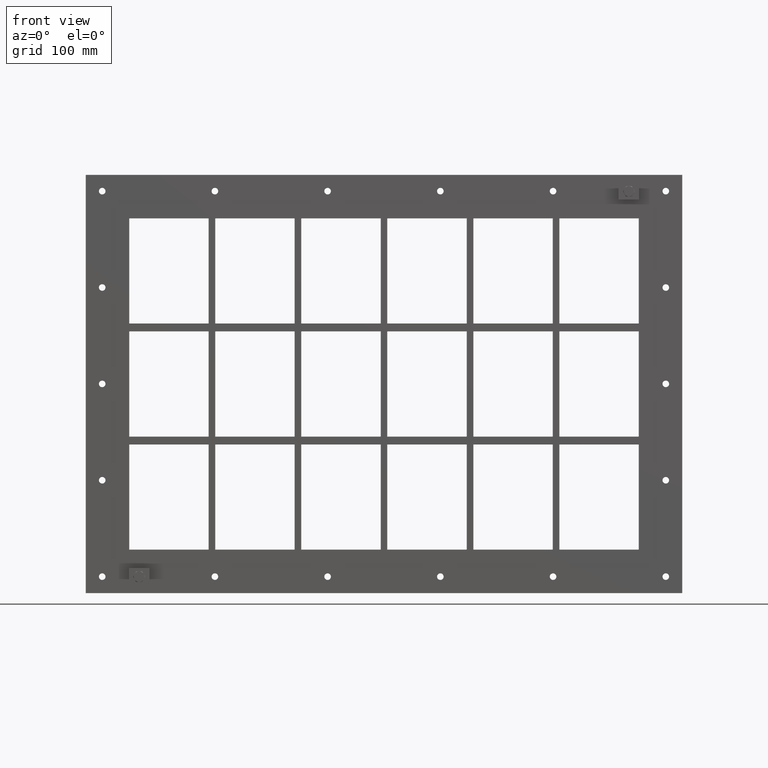
[diagram: clean part render]
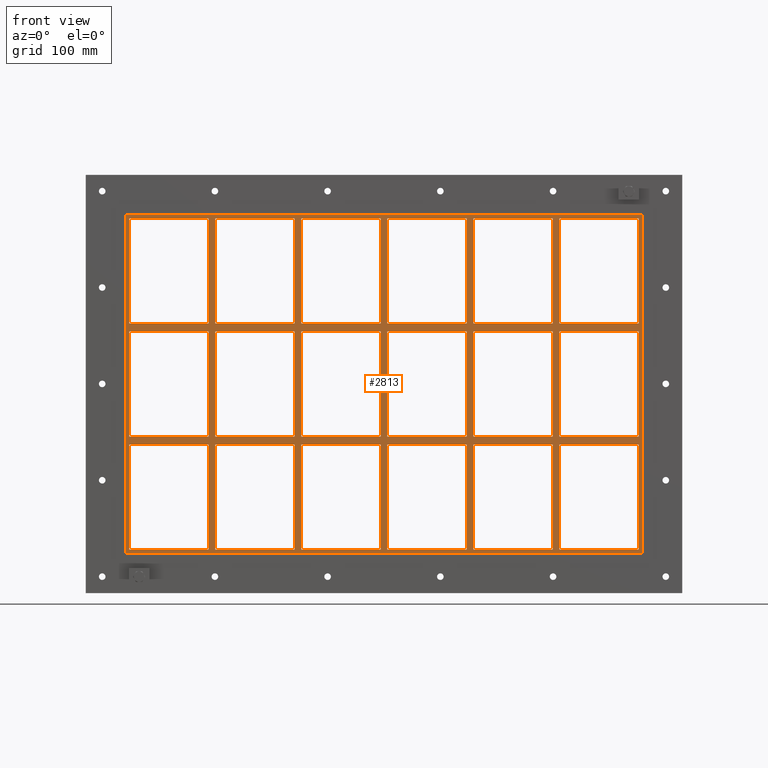
[diagram: same view with one face highlighted and labeled with its STEP entity id]
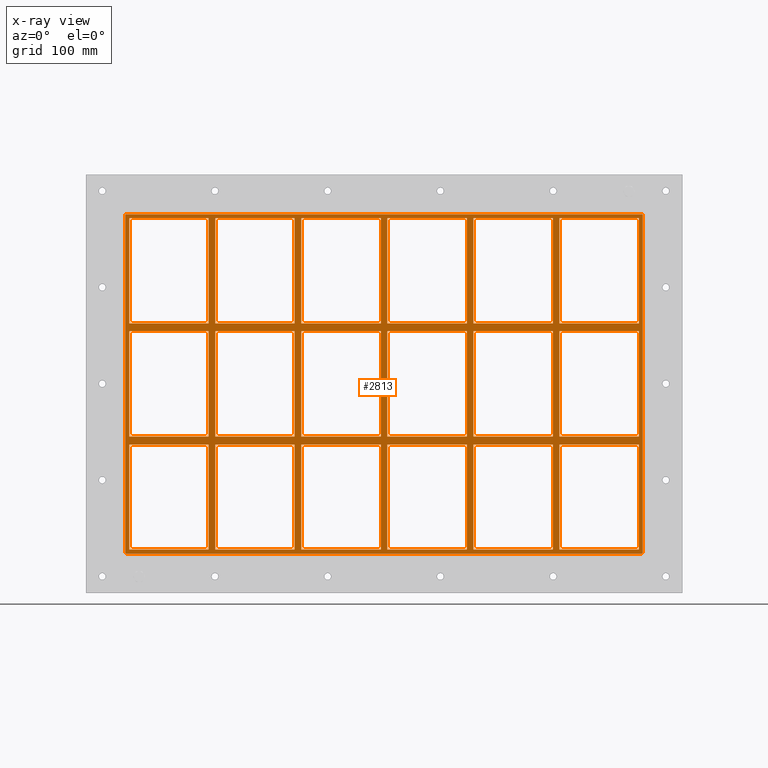
[diagram: x-ray of the same camera — body ghosted, the highlighted face saturated]
A machine part, front view. The second image highlights one B-rep face of the part: STEP entity #2813.
The next image is the same camera in x-ray: the body ghosted, the highlighted face saturated — about 0% of this face is hidden behind the body in this view.
In plain terms, the highlighted planar face has unit normal (0, 1, 0).
Its self-contained STEP definition (entity closure, byte-faithful):
#577=CARTESIAN_POINT('',(-266.00000000000028,-3.0,79.749999999989143));
#578=VERTEX_POINT('',#577);
#587=CARTESIAN_POINT('',(-386.49999999999858,-3.0,79.749999999989114));
#588=VERTEX_POINT('',#587);
#589=CARTESIAN_POINT('',(-266.00000000000023,-3.0,79.749999999989114));
#590=DIRECTION('',(-1.0,0.0,0.0));
#591=VECTOR('',#590,120.49999999999841);
#592=LINE('',#589,#591);
#593=EDGE_CURVE('',#578,#588,#592,.T.);
#617=CARTESIAN_POINT('',(-135.50000000000026,-3.0,79.749999999989114));
#618=VERTEX_POINT('',#617);
#627=CARTESIAN_POINT('',(-256.00000000000364,-3.0,79.749999999989114));
#628=VERTEX_POINT('',#627);
#629=CARTESIAN_POINT('',(-135.50000000000023,-3.0,79.749999999989114));
#630=DIRECTION('',(-1.0,0.0,0.0));
#631=VECTOR('',#630,120.50000000000341);
#632=LINE('',#629,#631);
#633=EDGE_CURVE('',#618,#628,#632,.T.);
#657=CARTESIAN_POINT('',(-5.000000000000213,-3.0,79.749999999989129));
#658=VERTEX_POINT('',#657);
#667=CARTESIAN_POINT('',(-125.50000000000367,-3.0,79.749999999989114));
#668=VERTEX_POINT('',#667);
#669=CARTESIAN_POINT('',(-5.000000000000227,-3.0,79.749999999989129));
#670=DIRECTION('',(-1.0,0.0,0.0));
#671=VECTOR('',#670,120.50000000000341);
#672=LINE('',#669,#671);
#673=EDGE_CURVE('',#658,#668,#672,.T.);
#697=CARTESIAN_POINT('',(125.4999999999998,-3.0,79.749999999989129));
#698=VERTEX_POINT('',#697);
#707=CARTESIAN_POINT('',(4.999999999996376,-3.0,79.749999999989129));
#708=VERTEX_POINT('',#707);
#709=CARTESIAN_POINT('',(125.49999999999977,-3.0,79.749999999989129));
#710=DIRECTION('',(-1.0,0.0,0.0));
#711=VECTOR('',#710,120.50000000000341);
#712=LINE('',#709,#711);
#713=EDGE_CURVE('',#698,#708,#712,.T.);
#739=CARTESIAN_POINT('',(265.99999999999642,-3.0,79.749999999989129));
#740=VERTEX_POINT('',#739);
#755=CARTESIAN_POINT('',(386.49999999999636,-3.0,79.749999999989143));
#756=VERTEX_POINT('',#755);
#763=CARTESIAN_POINT('',(386.49999999999636,-3.0,79.749999999989143));
#764=DIRECTION('',(-1.0,0.0,0.0));
#765=VECTOR('',#764,120.49999999999994);
#766=LINE('',#763,#765);
#767=EDGE_CURVE('',#756,#740,#766,.T.);
#777=CARTESIAN_POINT('',(255.9999999999998,-3.0,79.749999999989129));
#778=VERTEX_POINT('',#777);
#787=CARTESIAN_POINT('',(135.49999999999642,-3.0,79.749999999989129));
#788=VERTEX_POINT('',#787);
#789=CARTESIAN_POINT('',(255.9999999999998,-3.0,79.749999999989143));
#790=DIRECTION('',(-1.0,0.0,0.0));
#791=VECTOR('',#790,120.50000000000338);
#792=LINE('',#789,#791);
#793=EDGE_CURVE('',#778,#788,#792,.T.);
#819=CARTESIAN_POINT('',(-266.00000000000028,-3.0,91.749999999999829));
#820=VERTEX_POINT('',#819);
#835=CARTESIAN_POINT('',(-386.49999999999858,-3.0,91.749999999999801));
#836=VERTEX_POINT('',#835);
#843=CARTESIAN_POINT('',(-386.49999999999858,-3.0,91.749999999999801));
#844=DIRECTION('',(1.0,0.0,0.0));
#845=VECTOR('',#844,120.49999999999829);
#846=LINE('',#843,#845);
#847=EDGE_CURVE('',#836,#820,#846,.T.);
#857=CARTESIAN_POINT('',(265.99999999999648,-3.0,91.749999999999801));
#858=VERTEX_POINT('',#857);
#867=CARTESIAN_POINT('',(386.49999999999955,-3.0,91.749999999999801));
#868=VERTEX_POINT('',#867);
#869=CARTESIAN_POINT('',(265.99999999999642,-3.0,91.749999999999801));
#870=DIRECTION('',(1.0,0.0,0.0));
#871=VECTOR('',#870,120.50000000000318);
#872=LINE('',#869,#871);
#873=EDGE_CURVE('',#858,#868,#872,.T.);
#899=CARTESIAN_POINT('',(-135.50000000000026,-3.0,91.749999999999801));
#900=VERTEX_POINT('',#899);
#915=CARTESIAN_POINT('',(-256.00000000000364,-3.0,91.749999999999801));
#916=VERTEX_POINT('',#915);
#923=CARTESIAN_POINT('',(-256.00000000000364,-3.0,91.749999999999801));
#924=DIRECTION('',(1.0,0.0,0.0));
#925=VECTOR('',#924,120.50000000000335);
#926=LINE('',#923,#925);
#927=EDGE_CURVE('',#916,#900,#926,.T.);
#939=CARTESIAN_POINT('',(-5.000000000000213,-3.0,91.749999999999801));
#940=VERTEX_POINT('',#939);
#955=CARTESIAN_POINT('',(-125.50000000000364,-3.0,91.749999999999801));
#956=VERTEX_POINT('',#955);
#963=CARTESIAN_POINT('',(-125.50000000000364,-3.0,91.749999999999801));
#964=DIRECTION('',(1.0,0.0,0.0));
#965=VECTOR('',#964,120.50000000000341);
#966=LINE('',#963,#965);
#967=EDGE_CURVE('',#956,#940,#966,.T.);
#979=CARTESIAN_POINT('',(125.49999999999983,-3.0,91.749999999999801));
#980=VERTEX_POINT('',#979);
#995=CARTESIAN_POINT('',(4.999999999996376,-3.0,91.749999999999801));
#996=VERTEX_POINT('',#995);
#1003=CARTESIAN_POINT('',(4.999999999996362,-3.0,91.749999999999801));
#1004=DIRECTION('',(1.0,0.0,0.0));
#1005=VECTOR('',#1004,120.50000000000347);
#1006=LINE('',#1003,#1005);
#1007=EDGE_CURVE('',#996,#980,#1006,.T.);
#1019=CARTESIAN_POINT('',(255.99999999999989,-3.0,91.749999999999801));
#1020=VERTEX_POINT('',#1019);
#1035=CARTESIAN_POINT('',(135.49999999999642,-3.0,91.749999999999801));
#1036=VERTEX_POINT('',#1035);
#1043=CARTESIAN_POINT('',(135.49999999999642,-3.0,91.749999999999801));
#1044=DIRECTION('',(1.0,0.0,0.0));
#1045=VECTOR('',#1044,120.50000000000341);
#1046=LINE('',#1043,#1045);
#1047=EDGE_CURVE('',#1036,#1020,#1046,.T.);
#1066=CARTESIAN_POINT('',(-386.50000000000006,-3.0,251.25));
#1067=VERTEX_POINT('',#1066);
#1074=CARTESIAN_POINT('',(-386.50000000000006,-3.0,91.749999999999801));
#1075=DIRECTION('',(0.0,0.0,1.0));
#1076=VECTOR('',#1075,159.5000000000002);
#1077=LINE('',#1074,#1076);
#1078=EDGE_CURVE('',#836,#1067,#1077,.T.);
#1097=CARTESIAN_POINT('',(386.49999999999955,-3.0,-79.750000000000227));
#1098=VERTEX_POINT('',#1097);
#1105=CARTESIAN_POINT('',(386.50000000000006,-3.0,79.749999999989143));
#1106=DIRECTION('',(0.0,0.0,-1.0));
#1107=VECTOR('',#1106,159.49999999998937);
#1108=LINE('',#1105,#1107);
#1109=EDGE_CURVE('',#756,#1098,#1108,.T.);
#1120=CARTESIAN_POINT('',(386.50000000000006,-3.0,251.25));
#1121=VERTEX_POINT('',#1120);
#1122=CARTESIAN_POINT('',(386.50000000000006,-3.0,251.25));
#1123=DIRECTION('',(0.0,0.0,-1.0));
#1124=VECTOR('',#1123,159.5000000000002);
#1125=LINE('',#1122,#1124);
#1126=EDGE_CURVE('',#1121,#868,#1125,.T.);
#1151=CARTESIAN_POINT('',(255.9999999999998,-3.0,251.25));
#1152=VERTEX_POINT('',#1151);
#1153=CARTESIAN_POINT('',(255.9999999999998,-3.0,91.749999999999829));
#1154=DIRECTION('',(0.0,0.0,1.0));
#1155=VECTOR('',#1154,159.50000000000017);
#1156=LINE('',#1153,#1155);
#1157=EDGE_CURVE('',#1020,#1152,#1156,.T.);
#1190=CARTESIAN_POINT('',(265.99999999999642,-3.0,251.25));
#1191=VERTEX_POINT('',#1190);
#1198=CARTESIAN_POINT('',(265.99999999999642,-3.0,251.25));
#1199=DIRECTION('',(0.0,0.0,-1.0));
#1200=VECTOR('',#1199,159.5000000000002);
#1201=LINE('',#1198,#1200);
#1202=EDGE_CURVE('',#1191,#858,#1201,.T.);
#1213=CARTESIAN_POINT('',(125.4999999999998,-3.0,251.25));
#1214=VERTEX_POINT('',#1213);
#1215=CARTESIAN_POINT('',(125.4999999999998,-3.0,91.749999999999829));
#1216=DIRECTION('',(0.0,0.0,1.0));
#1217=VECTOR('',#1216,159.50000000000017);
#1218=LINE('',#1215,#1217);
#1219=EDGE_CURVE('',#980,#1214,#1218,.T.);
#1252=CARTESIAN_POINT('',(135.49999999999642,-3.0,251.25));
#1253=VERTEX_POINT('',#1252);
#1260=CARTESIAN_POINT('',(135.49999999999642,-3.0,251.25));
#1261=DIRECTION('',(0.0,0.0,-1.0));
#1262=VECTOR('',#1261,159.5000000000002);
#1263=LINE('',#1260,#1262);
#1264=EDGE_CURVE('',#1253,#1036,#1263,.T.);
#1275=CARTESIAN_POINT('',(-5.000000000000249,-3.0,251.25));
#1276=VERTEX_POINT('',#1275);
#1277=CARTESIAN_POINT('',(-5.000000000000237,-3.0,91.749999999999829));
#1278=DIRECTION('',(0.0,0.0,1.0));
#1279=VECTOR('',#1278,159.50000000000017);
#1280=LINE('',#1277,#1279);
#1281=EDGE_CURVE('',#940,#1276,#1280,.T.);
#1314=CARTESIAN_POINT('',(4.999999999996376,-3.0,251.25));
#1315=VERTEX_POINT('',#1314);
#1322=CARTESIAN_POINT('',(4.999999999996376,-3.0,251.25));
#1323=DIRECTION('',(0.0,0.0,-1.0));
#1324=VECTOR('',#1323,159.5000000000002);
#1325=LINE('',#1322,#1324);
#1326=EDGE_CURVE('',#1315,#996,#1325,.T.);
#1337=CARTESIAN_POINT('',(-135.50000000000026,-3.0,251.25));
#1338=VERTEX_POINT('',#1337);
#1339=CARTESIAN_POINT('',(-135.50000000000026,-3.0,91.749999999999829));
#1340=DIRECTION('',(0.0,0.0,1.0));
#1341=VECTOR('',#1340,159.50000000000017);
#1342=LINE('',#1339,#1341);
#1343=EDGE_CURVE('',#900,#1338,#1342,.T.);
#1376=CARTESIAN_POINT('',(-125.50000000000364,-3.0,251.25));
#1377=VERTEX_POINT('',#1376);
#1384=CARTESIAN_POINT('',(-125.50000000000364,-3.0,251.25));
#1385=DIRECTION('',(0.0,0.0,-1.0));
#1386=VECTOR('',#1385,159.5000000000002);
#1387=LINE('',#1384,#1386);
#1388=EDGE_CURVE('',#1377,#956,#1387,.T.);
#1399=CARTESIAN_POINT('',(-266.00000000000028,-3.0,251.25));
#1400=VERTEX_POINT('',#1399);
#1401=CARTESIAN_POINT('',(-266.00000000000023,-3.0,91.749999999999829));
#1402=DIRECTION('',(0.0,0.0,1.0));
#1403=VECTOR('',#1402,159.50000000000017);
#1404=LINE('',#1401,#1403);
#1405=EDGE_CURVE('',#820,#1400,#1404,.T.);
#1438=CARTESIAN_POINT('',(-266.00000000000023,-3.0,-79.750000000000227));
#1439=VERTEX_POINT('',#1438);
#1446=CARTESIAN_POINT('',(-266.00000000000023,-3.0,-79.750000000000227));
#1447=DIRECTION('',(0.0,0.0,1.0));
#1448=VECTOR('',#1447,159.49999999998937);
#1449=LINE('',#1446,#1448);
#1450=EDGE_CURVE('',#1439,#578,#1449,.T.);
#1469=CARTESIAN_POINT('',(-256.00000000000364,-3.0,251.25));
#1470=VERTEX_POINT('',#1469);
#1477=CARTESIAN_POINT('',(-256.00000000000364,-3.0,251.25));
#1478=DIRECTION('',(0.0,0.0,-1.0));
#1479=VECTOR('',#1478,159.5000000000002);
#1480=LINE('',#1477,#1479);
#1481=EDGE_CURVE('',#1470,#916,#1480,.T.);
#1957=CARTESIAN_POINT('',(255.99999999999983,-3.0,-79.750000000000227));
#1958=VERTEX_POINT('',#1957);
#1965=CARTESIAN_POINT('',(255.99999999999983,-3.0,-79.750000000000227));
#1966=DIRECTION('',(0.0,0.0,1.0));
#1967=VECTOR('',#1966,159.49999999998937);
#1968=LINE('',#1965,#1967);
#1969=EDGE_CURVE('',#1958,#778,#1968,.T.);
#1979=CARTESIAN_POINT('',(255.99999999999983,-3.0,-91.750000000010886));
#1980=VERTEX_POINT('',#1979);
#1988=CARTESIAN_POINT('',(255.99999999999983,-3.0,-251.25));
#1989=VERTEX_POINT('',#1988);
#1996=CARTESIAN_POINT('',(255.99999999999983,-3.0,-251.25));
#1997=DIRECTION('',(0.0,0.0,1.0));
#1998=VECTOR('',#1997,159.49999999998911);
#1999=LINE('',#1996,#1998);
#2000=EDGE_CURVE('',#1989,#1980,#1999,.T.);
#2011=CARTESIAN_POINT('',(265.99999999999642,-3.0,-79.750000000000227));
#2012=VERTEX_POINT('',#2011);
#2013=CARTESIAN_POINT('',(265.99999999999642,-3.0,79.749999999989143));
#2014=DIRECTION('',(0.0,0.0,-1.0));
#2015=VECTOR('',#2014,159.49999999998937);
#2016=LINE('',#2013,#2015);
#2017=EDGE_CURVE('',#740,#2012,#2016,.T.);
#2034=CARTESIAN_POINT('',(265.99999999999642,-3.0,-91.750000000010914));
#2035=VERTEX_POINT('',#2034);
#2042=CARTESIAN_POINT('',(265.99999999999642,-3.0,-251.24999999998175));
#2043=VERTEX_POINT('',#2042);
#2044=CARTESIAN_POINT('',(265.99999999999642,-3.0,-91.750000000010914));
#2045=DIRECTION('',(0.0,0.0,-1.0));
#2046=VECTOR('',#2045,159.49999999997084);
#2047=LINE('',#2044,#2046);
#2048=EDGE_CURVE('',#2035,#2043,#2047,.T.);
#2067=CARTESIAN_POINT('',(125.49999999999982,-3.0,-79.750000000000227));
#2068=VERTEX_POINT('',#2067);
#2075=CARTESIAN_POINT('',(125.49999999999982,-3.0,-79.750000000000227));
#2076=DIRECTION('',(0.0,0.0,1.0));
#2077=VECTOR('',#2076,159.49999999998937);
#2078=LINE('',#2075,#2077);
#2079=EDGE_CURVE('',#2068,#698,#2078,.T.);
#2089=CARTESIAN_POINT('',(125.49999999999982,-3.0,-91.7500000000109));
#2090=VERTEX_POINT('',#2089);
#2098=CARTESIAN_POINT('',(125.49999999999983,-3.0,-251.25));
#2099=VERTEX_POINT('',#2098);
#2106=CARTESIAN_POINT('',(125.49999999999983,-3.0,-251.25));
#2107=DIRECTION('',(0.0,0.0,1.0));
#2108=VECTOR('',#2107,159.49999999998911);
#2109=LINE('',#2106,#2108);
#2110=EDGE_CURVE('',#2099,#2090,#2109,.T.);
#2121=CARTESIAN_POINT('',(135.49999999999642,-3.0,-79.750000000000227));
#2122=VERTEX_POINT('',#2121);
#2123=CARTESIAN_POINT('',(135.49999999999642,-3.0,79.749999999989143));
#2124=DIRECTION('',(0.0,0.0,-1.0));
#2125=VECTOR('',#2124,159.49999999998937);
#2126=LINE('',#2123,#2125);
#2127=EDGE_CURVE('',#788,#2122,#2126,.T.);
#2144=CARTESIAN_POINT('',(135.49999999999642,-3.0,-91.750000000010914));
#2145=VERTEX_POINT('',#2144);
#2152=CARTESIAN_POINT('',(135.49999999999642,-3.0,-251.24999999998175));
#2153=VERTEX_POINT('',#2152);
#2154=CARTESIAN_POINT('',(135.49999999999642,-3.0,-91.750000000010914));
#2155=DIRECTION('',(0.0,0.0,-1.0));
#2156=VECTOR('',#2155,159.49999999997084);
#2157=LINE('',#2154,#2156);
#2158=EDGE_CURVE('',#2145,#2153,#2157,.T.);
#2177=CARTESIAN_POINT('',(-5.000000000000226,-3.0,-79.750000000000227));
#2178=VERTEX_POINT('',#2177);
#2185=CARTESIAN_POINT('',(-5.000000000000226,-3.0,-79.750000000000227));
#2186=DIRECTION('',(0.0,0.0,1.0));
#2187=VECTOR('',#2186,159.49999999998937);
#2188=LINE('',#2185,#2187);
#2189=EDGE_CURVE('',#2178,#658,#2188,.T.);
#2199=CARTESIAN_POINT('',(-5.000000000000224,-3.0,-91.7500000000109));
#2200=VERTEX_POINT('',#2199);
#2208=CARTESIAN_POINT('',(-5.000000000000213,-3.0,-251.25));
#2209=VERTEX_POINT('',#2208);
#2216=CARTESIAN_POINT('',(-5.000000000000213,-3.0,-251.25));
#2217=DIRECTION('',(0.0,0.0,1.0));
#2218=VECTOR('',#2217,159.49999999998911);
#2219=LINE('',#2216,#2218);
#2220=EDGE_CURVE('',#2209,#2200,#2219,.T.);
#2231=CARTESIAN_POINT('',(4.999999999996376,-3.0,-79.750000000000227));
#2232=VERTEX_POINT('',#2231);
#2233=CARTESIAN_POINT('',(4.999999999996376,-3.0,79.749999999989143));
#2234=DIRECTION('',(0.0,0.0,-1.0));
#2235=VECTOR('',#2234,159.49999999998937);
#2236=LINE('',#2233,#2235);
#2237=EDGE_CURVE('',#708,#2232,#2236,.T.);
#2254=CARTESIAN_POINT('',(4.999999999996376,-3.0,-91.750000000010914));
#2255=VERTEX_POINT('',#2254);
#2262=CARTESIAN_POINT('',(4.999999999996376,-3.0,-251.24999999998175));
#2263=VERTEX_POINT('',#2262);
#2264=CARTESIAN_POINT('',(4.999999999996376,-3.0,-91.750000000010914));
#2265=DIRECTION('',(0.0,0.0,-1.0));
#2266=VECTOR('',#2265,159.49999999997084);
#2267=LINE('',#2264,#2266);
#2268=EDGE_CURVE('',#2255,#2263,#2267,.T.);
#2287=CARTESIAN_POINT('',(-135.50000000000023,-3.0,-79.750000000000227));
#2288=VERTEX_POINT('',#2287);
#2295=CARTESIAN_POINT('',(-135.50000000000023,-3.0,-79.750000000000227));
#2296=DIRECTION('',(0.0,0.0,1.0));
#2297=VECTOR('',#2296,159.49999999998937);
#2298=LINE('',#2295,#2297);
#2299=EDGE_CURVE('',#2288,#618,#2298,.T.);
#2309=CARTESIAN_POINT('',(-135.50000000000023,-3.0,-91.7500000000109));
#2310=VERTEX_POINT('',#2309);
#2318=CARTESIAN_POINT('',(-135.50000000000023,-3.0,-251.25));
#2319=VERTEX_POINT('',#2318);
#2326=CARTESIAN_POINT('',(-135.50000000000023,-3.0,-251.25));
#2327=DIRECTION('',(0.0,0.0,1.0));
#2328=VECTOR('',#2327,159.49999999998911);
#2329=LINE('',#2326,#2328);
#2330=EDGE_CURVE('',#2319,#2310,#2329,.T.);
#2341=CARTESIAN_POINT('',(-125.50000000000364,-3.0,-79.750000000000227));
#2342=VERTEX_POINT('',#2341);
#2343=CARTESIAN_POINT('',(-125.50000000000364,-3.0,79.749999999989114));
#2344=DIRECTION('',(0.0,0.0,-1.0));
#2345=VECTOR('',#2344,159.49999999998934);
#2346=LINE('',#2343,#2345);
#2347=EDGE_CURVE('',#668,#2342,#2346,.T.);
#2364=CARTESIAN_POINT('',(-125.50000000000364,-3.0,-91.750000000010914));
#2365=VERTEX_POINT('',#2364);
#2372=CARTESIAN_POINT('',(-125.50000000000364,-3.0,-251.24999999998175));
#2373=VERTEX_POINT('',#2372);
#2374=CARTESIAN_POINT('',(-125.50000000000364,-3.0,-91.750000000010914));
#2375=DIRECTION('',(0.0,0.0,-1.0));
#2376=VECTOR('',#2375,159.49999999997084);
#2377=LINE('',#2374,#2376);
#2378=EDGE_CURVE('',#2365,#2373,#2377,.T.);
#2397=CARTESIAN_POINT('',(-256.00000000000364,-3.0,-251.24999999998175));
#2398=VERTEX_POINT('',#2397);
#2405=CARTESIAN_POINT('',(-135.50000000000023,-3.0,-251.25));
#2406=DIRECTION('',(-1.0,0.0,0.0));
#2407=VECTOR('',#2406,120.50000000000335);
#2408=LINE('',#2405,#2407);
#2409=EDGE_CURVE('',#2319,#2398,#2408,.T.);
#2422=CARTESIAN_POINT('',(-5.000000000000227,-3.0,-251.25));
#2423=DIRECTION('',(-1.0,0.0,0.0));
#2424=VECTOR('',#2423,120.50000000000341);
#2425=LINE('',#2422,#2424);
#2426=EDGE_CURVE('',#2209,#2373,#2425,.T.);
#2439=CARTESIAN_POINT('',(125.49999999999983,-3.0,-251.25));
#2440=DIRECTION('',(-1.0,0.0,0.0));
#2441=VECTOR('',#2440,120.50000000000347);
#2442=LINE('',#2439,#2441);
#2443=EDGE_CURVE('',#2099,#2263,#2442,.T.);
#2456=CARTESIAN_POINT('',(255.99999999999983,-3.0,-251.25));
#2457=DIRECTION('',(-1.0,0.0,0.0));
#2458=VECTOR('',#2457,120.50000000000341);
#2459=LINE('',#2456,#2458);
#2460=EDGE_CURVE('',#1989,#2153,#2459,.T.);
#2471=CARTESIAN_POINT('',(386.50000000000006,-3.0,-251.25));
#2472=VERTEX_POINT('',#2471);
#2473=CARTESIAN_POINT('',(386.50000000000006,-3.0,-251.25));
#2474=DIRECTION('',(-1.0,0.0,0.0));
#2475=VECTOR('',#2474,120.50000000000364);
#2476=LINE('',#2473,#2475);
#2477=EDGE_CURVE('',#2472,#2043,#2476,.T.);
#2489=CARTESIAN_POINT('',(3.697611E-014,-3.0,0.0));
#2490=DIRECTION('',(0.0,1.0,0.0));
#2491=DIRECTION('',(0.0,0.0,1.0));
#2492=AXIS2_PLACEMENT_3D('',#2489,#2490,#2491);
#2493=PLANE('',#2492);
#2494=CARTESIAN_POINT('',(-390.49999999999989,-3.0,-257.25));
#2495=VERTEX_POINT('',#2494);
#2496=CARTESIAN_POINT('',(-392.50000000000006,-3.0,-255.25));
#2497=VERTEX_POINT('',#2496);
#2498=CARTESIAN_POINT('',(-390.5,-3.0,-255.25));
#2499=DIRECTION('',(0.0,1.0,0.0));
#2500=DIRECTION('',(-0.707106781186573,0.0,-0.707106781186523));
#2501=AXIS2_PLACEMENT_3D('',#2498,#2499,#2500);
#2502=CIRCLE('',#2501,2.0);
#2503=EDGE_CURVE('',#2495,#2497,#2502,.T.);
#2504=ORIENTED_EDGE('',*,*,#2503,.F.);
#2505=CARTESIAN_POINT('',(390.50000000000011,-3.0,-257.25));
#2506=VERTEX_POINT('',#2505);
#2507=CARTESIAN_POINT('',(-390.49999999999989,-3.0,-257.25));
#2508=DIRECTION('',(1.0,0.0,0.0));
#2509=VECTOR('',#2508,781.0);
#2510=LINE('',#2507,#2509);
#2511=EDGE_CURVE('',#2495,#2506,#2510,.T.);
#2512=ORIENTED_EDGE('',*,*,#2511,.T.);
#2513=CARTESIAN_POINT('',(392.50000000000011,-3.0,-255.25));
#2514=VERTEX_POINT('',#2513);
#2515=CARTESIAN_POINT('',(390.50000000000011,-3.0,-255.25));
#2516=DIRECTION('',(0.0,1.0,0.0));
#2517=DIRECTION('',(0.707106781186548,0.0,-0.707106781186548));
#2518=AXIS2_PLACEMENT_3D('',#2515,#2516,#2517);
#2519=CIRCLE('',#2518,2.0);
#2520=EDGE_CURVE('',#2514,#2506,#2519,.T.);
#2521=ORIENTED_EDGE('',*,*,#2520,.F.);
#2522=CARTESIAN_POINT('',(392.50000000000011,-3.0,255.25000000000003));
#2523=VERTEX_POINT('',#2522);
#2524=CARTESIAN_POINT('',(392.50000000000011,-3.0,-255.25));
#2525=DIRECTION('',(0.0,0.0,1.0));
#2526=VECTOR('',#2525,510.5);
#2527=LINE('',#2524,#2526);
#2528=EDGE_CURVE('',#2514,#2523,#2527,.T.);
#2529=ORIENTED_EDGE('',*,*,#2528,.T.);
#2530=CARTESIAN_POINT('',(390.50000000000011,-3.0,257.25));
#2531=VERTEX_POINT('',#2530);
#2532=CARTESIAN_POINT('',(390.50000000000011,-3.0,255.25000000000003));
#2533=DIRECTION('',(0.0,1.0,0.0));
#2534=DIRECTION('',(0.70710678118656,0.0,0.707106781186535));
#2535=AXIS2_PLACEMENT_3D('',#2532,#2533,#2534);
#2536=CIRCLE('',#2535,2.0);
#2537=EDGE_CURVE('',#2531,#2523,#2536,.T.);
#2538=ORIENTED_EDGE('',*,*,#2537,.F.);
#2539=CARTESIAN_POINT('',(-390.50000000000006,-3.0,257.25));
#2540=VERTEX_POINT('',#2539);
#2541=CARTESIAN_POINT('',(390.50000000000011,-3.0,257.25));
#2542=DIRECTION('',(-1.0,0.0,0.0));
#2543=VECTOR('',#2542,781.00000000000011);
#2544=LINE('',#2541,#2543);
#2545=EDGE_CURVE('',#2531,#2540,#2544,.T.);
#2546=ORIENTED_EDGE('',*,*,#2545,.T.);
#2547=CARTESIAN_POINT('',(-392.50000000000006,-3.0,255.25));
#2548=VERTEX_POINT('',#2547);
#2549=CARTESIAN_POINT('',(-390.50000000000006,-3.0,255.25));
#2550=DIRECTION('',(0.0,1.0,0.0));
#2551=DIRECTION('',(-0.707106781186548,0.0,0.707106781186548));
#2552=AXIS2_PLACEMENT_3D('',#2549,#2550,#2551);
#2553=CIRCLE('',#2552,2.0);
#2554=EDGE_CURVE('',#2548,#2540,#2553,.T.);
#2555=ORIENTED_EDGE('',*,*,#2554,.F.);
#2556=CARTESIAN_POINT('',(-392.50000000000006,-3.0,255.25));
#2557=DIRECTION('',(0.0,0.0,-1.0));
#2558=VECTOR('',#2557,510.5);
#2559=LINE('',#2556,#2558);
#2560=EDGE_CURVE('',#2548,#2497,#2559,.T.);
#2561=ORIENTED_EDGE('',*,*,#2560,.T.);
#2562=EDGE_LOOP('',(#2504,#2512,#2521,#2529,#2538,#2546,#2555,#2561));
#2563=FACE_OUTER_BOUND('',#2562,.T.);
#2564=ORIENTED_EDGE('',*,*,#1078,.T.);
#2565=CARTESIAN_POINT('',(-386.50000000000006,-3.0,251.25));
#2566=DIRECTION('',(1.0,0.0,0.0));
#2567=VECTOR('',#2566,120.49999999999977);
#2568=LINE('',#2565,#2567);
#2569=EDGE_CURVE('',#1067,#1400,#2568,.T.);
#2570=ORIENTED_EDGE('',*,*,#2569,.T.);
#2571=ORIENTED_EDGE('',*,*,#1405,.F.);
#2572=ORIENTED_EDGE('',*,*,#847,.F.);
#2573=EDGE_LOOP('',(#2564,#2570,#2571,#2572));
#2574=FACE_BOUND('',#2573,.T.);
#2575=ORIENTED_EDGE('',*,*,#1109,.T.);
#2576=CARTESIAN_POINT('',(265.99999999999642,-3.0,-79.750000000000227));
#2577=DIRECTION('',(1.0,0.0,0.0));
#2578=VECTOR('',#2577,120.50000000000318);
#2579=LINE('',#2576,#2578);
#2580=EDGE_CURVE('',#2012,#1098,#2579,.T.);
#2581=ORIENTED_EDGE('',*,*,#2580,.F.);
#2582=ORIENTED_EDGE('',*,*,#2017,.F.);
#2583=ORIENTED_EDGE('',*,*,#767,.F.);
#2584=EDGE_LOOP('',(#2575,#2581,#2582,#2583));
#2585=FACE_BOUND('',#2584,.T.);
#2586=ORIENTED_EDGE('',*,*,#1969,.F.);
#2587=CARTESIAN_POINT('',(135.49999999999642,-3.0,-79.750000000000227));
#2588=DIRECTION('',(1.0,0.0,0.0));
#2589=VECTOR('',#2588,120.50000000000341);
#2590=LINE('',#2587,#2589);
#2591=EDGE_CURVE('',#2122,#1958,#2590,.T.);
#2592=ORIENTED_EDGE('',*,*,#2591,.F.);
#2593=ORIENTED_EDGE('',*,*,#2127,.F.);
#2594=ORIENTED_EDGE('',*,*,#793,.F.);
#2595=EDGE_LOOP('',(#2586,#2592,#2593,#2594));
#2596=FACE_BOUND('',#2595,.T.);
#2597=ORIENTED_EDGE('',*,*,#2079,.F.);
#2598=CARTESIAN_POINT('',(4.999999999996362,-3.0,-79.750000000000227));
#2599=DIRECTION('',(1.0,0.0,0.0));
#2600=VECTOR('',#2599,120.50000000000347);
#2601=LINE('',#2598,#2600);
#2602=EDGE_CURVE('',#2232,#2068,#2601,.T.);
#2603=ORIENTED_EDGE('',*,*,#2602,.F.);
#2604=ORIENTED_EDGE('',*,*,#2237,.F.);
#2605=ORIENTED_EDGE('',*,*,#713,.F.);
#2606=EDGE_LOOP('',(#2597,#2603,#2604,#2605));
#2607=FACE_BOUND('',#2606,.T.);
#2608=ORIENTED_EDGE('',*,*,#2189,.F.);
#2609=CARTESIAN_POINT('',(-125.50000000000364,-3.0,-79.750000000000227));
#2610=DIRECTION('',(1.0,0.0,0.0));
#2611=VECTOR('',#2610,120.50000000000341);
#2612=LINE('',#2609,#2611);
#2613=EDGE_CURVE('',#2342,#2178,#2612,.T.);
#2614=ORIENTED_EDGE('',*,*,#2613,.F.);
#2615=ORIENTED_EDGE('',*,*,#2347,.F.);
#2616=ORIENTED_EDGE('',*,*,#673,.F.);
#2617=EDGE_LOOP('',(#2608,#2614,#2615,#2616));
#2618=FACE_BOUND('',#2617,.T.);
#2619=ORIENTED_EDGE('',*,*,#2299,.F.);
#2620=CARTESIAN_POINT('',(-256.00000000000364,-3.0,-79.750000000000227));
#2621=VERTEX_POINT('',#2620);
#2622=CARTESIAN_POINT('',(-256.00000000000364,-3.0,-79.750000000000227));
#2623=DIRECTION('',(1.0,0.0,0.0));
#2624=VECTOR('',#2623,120.50000000000335);
#2625=LINE('',#2622,#2624);
#2626=EDGE_CURVE('',#2621,#2288,#2625,.T.);
#2627=ORIENTED_EDGE('',*,*,#2626,.F.);
#2628=CARTESIAN_POINT('',(-256.00000000000364,-3.0,79.749999999989114));
#2629=DIRECTION('',(0.0,0.0,-1.0));
#2630=VECTOR('',#2629,159.49999999998934);
#2631=LINE('',#2628,#2630);
#2632=EDGE_CURVE('',#628,#2621,#2631,.T.);
#2633=ORIENTED_EDGE('',*,*,#2632,.F.);
#2634=ORIENTED_EDGE('',*,*,#633,.F.);
#2635=EDGE_LOOP('',(#2619,#2627,#2633,#2634));
#2636=FACE_BOUND('',#2635,.T.);
#2637=ORIENTED_EDGE('',*,*,#1047,.F.);
#2638=ORIENTED_EDGE('',*,*,#1264,.F.);
#2639=CARTESIAN_POINT('',(135.49999999999648,-3.0,251.25));
#2640=DIRECTION('',(1.0,0.0,0.0));
#2641=VECTOR('',#2640,120.50000000000335);
#2642=LINE('',#2639,#2641);
#2643=EDGE_CURVE('',#1253,#1152,#2642,.T.);
#2644=ORIENTED_EDGE('',*,*,#2643,.T.);
#2645=ORIENTED_EDGE('',*,*,#1157,.F.);
#2646=EDGE_LOOP('',(#2637,#2638,#2644,#2645));
#2647=FACE_BOUND('',#2646,.T.);
#2648=ORIENTED_EDGE('',*,*,#1007,.F.);
#2649=ORIENTED_EDGE('',*,*,#1326,.F.);
#2650=CARTESIAN_POINT('',(4.999999999996362,-3.0,251.25));
#2651=DIRECTION('',(1.0,0.0,0.0));
#2652=VECTOR('',#2651,120.50000000000341);
#2653=LINE('',#2650,#2652);
#2654=EDGE_CURVE('',#1315,#1214,#2653,.T.);
#2655=ORIENTED_EDGE('',*,*,#2654,.T.);
#2656=ORIENTED_EDGE('',*,*,#1219,.F.);
#2657=EDGE_LOOP('',(#2648,#2649,#2655,#2656));
#2658=FACE_BOUND('',#2657,.T.);
#2659=ORIENTED_EDGE('',*,*,#967,.F.);
#2660=ORIENTED_EDGE('',*,*,#1388,.F.);
#2661=CARTESIAN_POINT('',(-125.50000000000364,-3.0,251.25));
#2662=DIRECTION('',(1.0,0.0,0.0));
#2663=VECTOR('',#2662,120.50000000000338);
#2664=LINE('',#2661,#2663);
#2665=EDGE_CURVE('',#1377,#1276,#2664,.T.);
#2666=ORIENTED_EDGE('',*,*,#2665,.T.);
#2667=ORIENTED_EDGE('',*,*,#1281,.F.);
#2668=EDGE_LOOP('',(#2659,#2660,#2666,#2667));
#2669=FACE_BOUND('',#2668,.T.);
#2670=ORIENTED_EDGE('',*,*,#927,.F.);
#2671=ORIENTED_EDGE('',*,*,#1481,.F.);
#2672=CARTESIAN_POINT('',(-256.00000000000364,-3.0,251.25));
#2673=DIRECTION('',(1.0,0.0,0.0));
#2674=VECTOR('',#2673,120.50000000000338);
#2675=LINE('',#2672,#2674);
#2676=EDGE_CURVE('',#1470,#1338,#2675,.T.);
#2677=ORIENTED_EDGE('',*,*,#2676,.T.);
#2678=ORIENTED_EDGE('',*,*,#1343,.F.);
#2679=EDGE_LOOP('',(#2670,#2671,#2677,#2678));
#2680=FACE_BOUND('',#2679,.T.);
#2681=ORIENTED_EDGE('',*,*,#593,.F.);
#2682=ORIENTED_EDGE('',*,*,#1450,.F.);
#2683=CARTESIAN_POINT('',(-386.49999999999858,-3.0,-79.750000000000227));
#2684=VERTEX_POINT('',#2683);
#2685=CARTESIAN_POINT('',(-386.49999999999858,-3.0,-79.750000000000227));
#2686=DIRECTION('',(1.0,0.0,0.0));
#2687=VECTOR('',#2686,120.49999999999835);
#2688=LINE('',#2685,#2687);
#2689=EDGE_CURVE('',#2684,#1439,#2688,.T.);
#2690=ORIENTED_EDGE('',*,*,#2689,.F.);
#2691=CARTESIAN_POINT('',(-386.50000000000006,-3.0,-79.750000000000227));
#2692=DIRECTION('',(0.0,0.0,1.0));
#2693=VECTOR('',#2692,159.49999999998934);
#2694=LINE('',#2691,#2693);
#2695=EDGE_CURVE('',#2684,#588,#2694,.T.);
#2696=ORIENTED_EDGE('',*,*,#2695,.T.);
#2697=EDGE_LOOP('',(#2681,#2682,#2690,#2696));
#2698=FACE_BOUND('',#2697,.T.);
#2699=ORIENTED_EDGE('',*,*,#873,.F.);
#2700=ORIENTED_EDGE('',*,*,#1202,.F.);
#2701=CARTESIAN_POINT('',(265.99999999999642,-3.0,251.25));
#2702=DIRECTION('',(1.0,0.0,0.0));
#2703=VECTOR('',#2702,120.50000000000369);
#2704=LINE('',#2701,#2703);
#2705=EDGE_CURVE('',#1191,#1121,#2704,.T.);
#2706=ORIENTED_EDGE('',*,*,#2705,.T.);
#2707=ORIENTED_EDGE('',*,*,#1126,.T.);
#2708=EDGE_LOOP('',(#2699,#2700,#2706,#2707));
#2709=FACE_BOUND('',#2708,.T.);
#2710=ORIENTED_EDGE('',*,*,#2460,.T.);
#2711=ORIENTED_EDGE('',*,*,#2158,.F.);
#2712=CARTESIAN_POINT('',(255.99999999999983,-3.0,-91.750000000010886));
#2713=DIRECTION('',(-1.0,0.0,0.0));
#2714=VECTOR('',#2713,120.50000000000341);
#2715=LINE('',#2712,#2714);
#2716=EDGE_CURVE('',#1980,#2145,#2715,.T.);
#2717=ORIENTED_EDGE('',*,*,#2716,.F.);
#2718=ORIENTED_EDGE('',*,*,#2000,.F.);
#2719=EDGE_LOOP('',(#2710,#2711,#2717,#2718));
#2720=FACE_BOUND('',#2719,.T.);
#2721=ORIENTED_EDGE('',*,*,#2443,.T.);
#2722=ORIENTED_EDGE('',*,*,#2268,.F.);
#2723=CARTESIAN_POINT('',(125.49999999999983,-3.0,-91.7500000000109));
#2724=DIRECTION('',(-1.0,0.0,0.0));
#2725=VECTOR('',#2724,120.50000000000347);
#2726=LINE('',#2723,#2725);
#2727=EDGE_CURVE('',#2090,#2255,#2726,.T.);
#2728=ORIENTED_EDGE('',*,*,#2727,.F.);
#2729=ORIENTED_EDGE('',*,*,#2110,.F.);
#2730=EDGE_LOOP('',(#2721,#2722,#2728,#2729));
#2731=FACE_BOUND('',#2730,.T.);
#2732=ORIENTED_EDGE('',*,*,#2426,.T.);
#2733=ORIENTED_EDGE('',*,*,#2378,.F.);
#2734=CARTESIAN_POINT('',(-5.000000000000227,-3.0,-91.7500000000109));
#2735=DIRECTION('',(-1.0,0.0,0.0));
#2736=VECTOR('',#2735,120.50000000000341);
#2737=LINE('',#2734,#2736);
#2738=EDGE_CURVE('',#2200,#2365,#2737,.T.);
#2739=ORIENTED_EDGE('',*,*,#2738,.F.);
#2740=ORIENTED_EDGE('',*,*,#2220,.F.);
#2741=EDGE_LOOP('',(#2732,#2733,#2739,#2740));
#2742=FACE_BOUND('',#2741,.T.);
#2743=ORIENTED_EDGE('',*,*,#2409,.T.);
#2744=CARTESIAN_POINT('',(-256.00000000000364,-3.0,-91.750000000010914));
#2745=VERTEX_POINT('',#2744);
#2746=CARTESIAN_POINT('',(-256.00000000000364,-3.0,-91.750000000010914));
#2747=DIRECTION('',(0.0,0.0,-1.0));
#2748=VECTOR('',#2747,159.49999999997084);
#2749=LINE('',#2746,#2748);
#2750=EDGE_CURVE('',#2745,#2398,#2749,.T.);
#2751=ORIENTED_EDGE('',*,*,#2750,.F.);
#2752=CARTESIAN_POINT('',(-135.50000000000023,-3.0,-91.750000000010914));
#2753=DIRECTION('',(-1.0,0.0,0.0));
#2754=VECTOR('',#2753,120.50000000000341);
#2755=LINE('',#2752,#2754);
#2756=EDGE_CURVE('',#2310,#2745,#2755,.T.);
#2757=ORIENTED_EDGE('',*,*,#2756,.F.);
#2758=ORIENTED_EDGE('',*,*,#2330,.F.);
#2759=EDGE_LOOP('',(#2743,#2751,#2757,#2758));
#2760=FACE_BOUND('',#2759,.T.);
#2761=ORIENTED_EDGE('',*,*,#2048,.F.);
#2762=CARTESIAN_POINT('',(386.49999999999636,-3.0,-91.750000000010886));
#2763=VERTEX_POINT('',#2762);
#2764=CARTESIAN_POINT('',(386.49999999999636,-3.0,-91.750000000010886));
#2765=DIRECTION('',(-1.0,0.0,0.0));
#2766=VECTOR('',#2765,120.49999999999994);
#2767=LINE('',#2764,#2766);
#2768=EDGE_CURVE('',#2763,#2035,#2767,.T.);
#2769=ORIENTED_EDGE('',*,*,#2768,.F.);
#2770=CARTESIAN_POINT('',(386.50000000000006,-3.0,-91.750000000010886));
#2771=DIRECTION('',(0.0,0.0,-1.0));
#2772=VECTOR('',#2771,159.49999999998911);
#2773=LINE('',#2770,#2772);
#2774=EDGE_CURVE('',#2763,#2472,#2773,.T.);
#2775=ORIENTED_EDGE('',*,*,#2774,.T.);
#2776=ORIENTED_EDGE('',*,*,#2477,.T.);
#2777=EDGE_LOOP('',(#2761,#2769,#2775,#2776));
#2778=FACE_BOUND('',#2777,.T.);
#2779=CARTESIAN_POINT('',(-266.00000000000023,-3.0,-91.750000000010914));
#2780=VERTEX_POINT('',#2779);
#2781=CARTESIAN_POINT('',(-386.49999999999858,-3.0,-91.750000000010914));
#2782=VERTEX_POINT('',#2781);
#2783=CARTESIAN_POINT('',(-266.00000000000023,-3.0,-91.750000000010914));
#2784=DIRECTION('',(-1.0,0.0,0.0));
#2785=VECTOR('',#2784,120.49999999999841);
#2786=LINE('',#2783,#2785);
#2787=EDGE_CURVE('',#2780,#2782,#2786,.T.);
#2788=ORIENTED_EDGE('',*,*,#2787,.F.);
#2789=CARTESIAN_POINT('',(-266.00000000000023,-3.0,-251.25));
#2790=VERTEX_POINT('',#2789);
#2791=CARTESIAN_POINT('',(-266.00000000000023,-3.0,-251.25));
#2792=DIRECTION('',(0.0,0.0,1.0));
#2793=VECTOR('',#2792,159.49999999998909);
#2794=LINE('',#2791,#2793);
#2795=EDGE_CURVE('',#2790,#2780,#2794,.T.);
#2796=ORIENTED_EDGE('',*,*,#2795,.F.);
#2797=CARTESIAN_POINT('',(-386.50000000000006,-3.0,-251.25));
#2798=VERTEX_POINT('',#2797);
#2799=CARTESIAN_POINT('',(-266.00000000000017,-3.0,-251.25));
#2800=DIRECTION('',(-1.0,0.0,0.0));
#2801=VECTOR('',#2800,120.49999999999989);
#2802=LINE('',#2799,#2801);
#2803=EDGE_CURVE('',#2790,#2798,#2802,.T.);
#2804=ORIENTED_EDGE('',*,*,#2803,.T.);
#2805=CARTESIAN_POINT('',(-386.50000000000006,-3.0,-251.25));
#2806=DIRECTION('',(0.0,0.0,1.0));
#2807=VECTOR('',#2806,159.49999999998909);
#2808=LINE('',#2805,#2807);
#2809=EDGE_CURVE('',#2798,#2782,#2808,.T.);
#2810=ORIENTED_EDGE('',*,*,#2809,.T.);
#2811=EDGE_LOOP('',(#2788,#2796,#2804,#2810));
#2812=FACE_BOUND('',#2811,.T.);
#2813=ADVANCED_FACE('',(#2563,#2574,#2585,#2596,#2607,#2618,#2636,#2647,#2658,#2669,#2680,#2698,#2709,#2720,#2731,#2742,#2760,#2778,#2812),#2493,.F.);